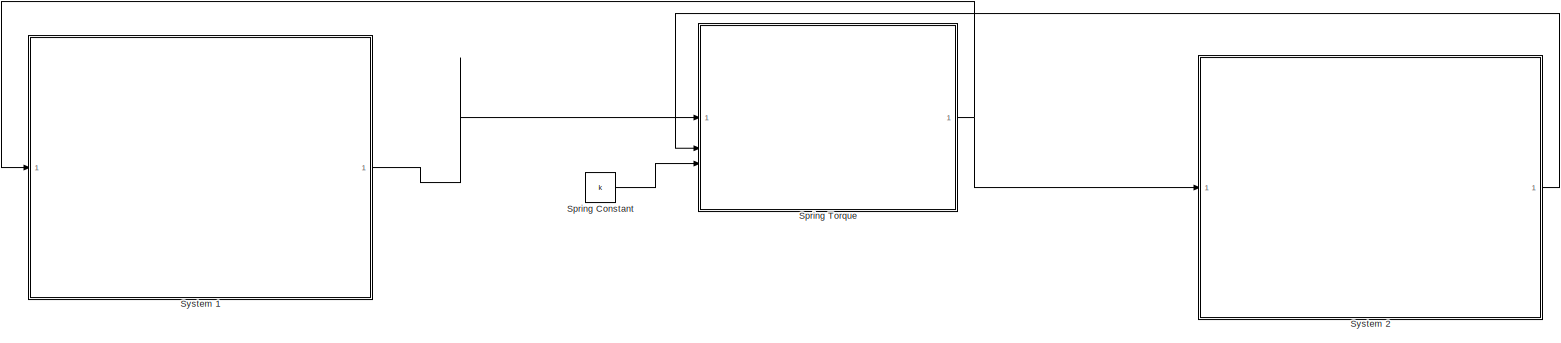
[diagram: root canvas - part 1/1, most of the canvas]
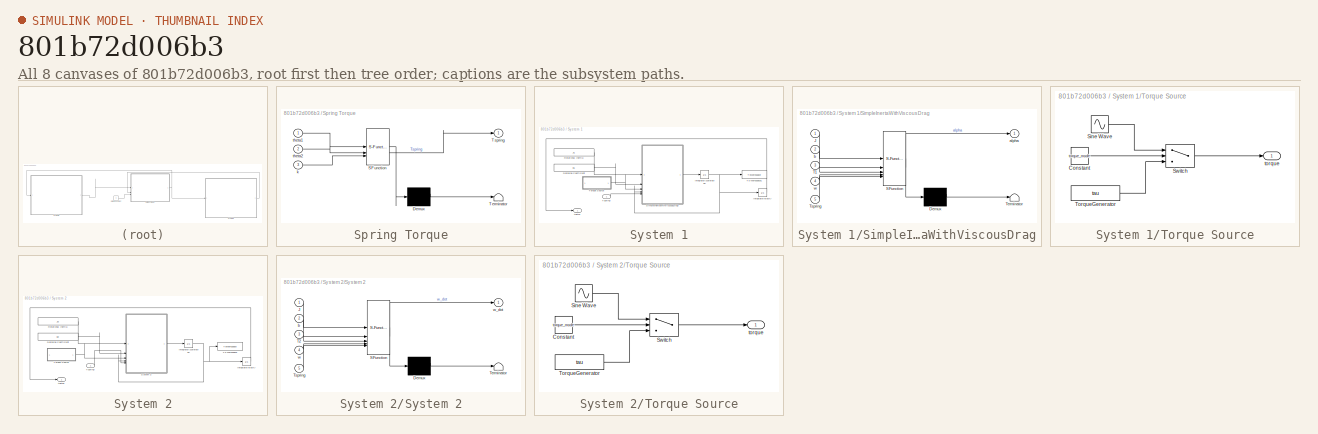
[diagram: thumbnail index - all 8 canvases of the model, root first then tree order]
MODEL slx_801b72d006b3
KIND model
CONFIG AbsTol = auto
CONFIG EnableMultiTasking = off
CONFIG FixedStep = 0.1
CONFIG MaxStep = auto
CONFIG MinStep = auto
CONFIG RelTol = 1e-3
CONFIG SampleTimeConstraint = Unconstrained
CONFIG SolverName = ode1
CONFIG StartTime = 0.0
CONFIG StopTime = 25
BLOCK [Constant] Spring Constant
  Value = k
BLOCK [SubSystem] Spring Torque
  ErrorFcn = Stateflow.Translate.translate
  PermitHierarchicalResolution = ExplicitOnly
  SFBlockType = MATLAB Function
  TreatAsAtomicUnit = on
BLOCK [Demux] Spring Torque/ Demux 
  Outputs = 1
BLOCK [S-Function] Spring Torque/ SFunction 
  EnableBusSupport = on
  FunctionName = sf_sfun
  PortCounts = [3 2]
  SFcnIsStateOwnerBlock = off
  SFunctionDeploymentMode = off
  Tag = Stateflow S-Function 1
BLOCK [Terminator] Spring Torque/ Terminator 
BLOCK [Outport] Spring Torque/Tspring
  VectorParamsAs1DForOutWhenUnconnected = off
BLOCK [Inport] Spring Torque/k
  Port = 3
BLOCK [Inport] Spring Torque/theta1
BLOCK [Inport] Spring Torque/theta2
  Port = 2
BLOCK [SubSystem] System 1
BLOCK [Constant] System 1/Damping Coefficient
  Value = b1
BLOCK [Integrator] System 1/IntegrateAcceleration
  InitialCondition = omega_init
BLOCK [Integrator] System 1/IntegrateVelocity
  InitialCondition = theta0
BLOCK [Constant] System 1/Rotational Inertia
  Value = J1
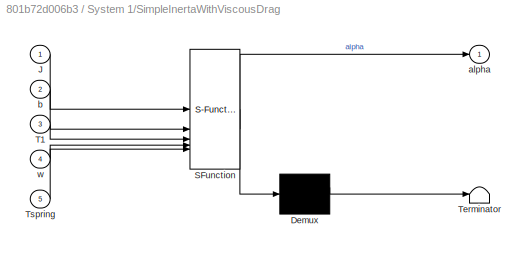
BLOCK [SubSystem] System 1/SimpleInertaWithViscousDrag
  ErrorFcn = Stateflow.Translate.translate
  PermitHierarchicalResolution = ExplicitOnly
  SFBlockType = MATLAB Function
  TreatAsAtomicUnit = on
BLOCK [Demux] System 1/SimpleInertaWithViscousDrag/ Demux 
  Outputs = 1
BLOCK [S-Function] System 1/SimpleInertaWithViscousDrag/ SFunction 
  EnableBusSupport = on
  FunctionName = sf_sfun
  PortCounts = [5 2]
  SFcnIsStateOwnerBlock = off
  SFunctionDeploymentMode = off
  Tag = Stateflow S-Function 2
BLOCK [Terminator] System 1/SimpleInertaWithViscousDrag/ Terminator 
BLOCK [Inport] System 1/SimpleInertaWithViscousDrag/J
BLOCK [Inport] System 1/SimpleInertaWithViscousDrag/T1
  Port = 3
BLOCK [Inport] System 1/SimpleInertaWithViscousDrag/Tspring
  Port = 5
BLOCK [Outport] System 1/SimpleInertaWithViscousDrag/alpha
BLOCK [Inport] System 1/SimpleInertaWithViscousDrag/b
  Port = 2
BLOCK [Inport] System 1/SimpleInertaWithViscousDrag/w
  Port = 4
BLOCK [ToWorkspace] System 1/To Workspace1
  FixptAsFi = on
  MaxDataPoints = inf
  SampleTime = -1
  SaveFormat = Timeseries
  VariableName = omegaoption1S1
BLOCK [SubSystem] System 1/Torque Source
BLOCK [Constant] System 1/Torque Source/Constant
  Value = torque_mode
BLOCK [Sin] System 1/Torque Source/Sine Wave
  Frequency = w_freq
  SampleTime = 0
BLOCK [Switch] System 1/Torque Source/Switch
  Criteria = u2 > Threshold
  InputSameDT = off
  SaturateOnIntegerOverflow = off
BLOCK [Constant] System 1/Torque Source/TorqueGenerator
  Value = tau
BLOCK [Outport] System 1/Torque Source/torque
BLOCK [Inport] System 1/Tspring
BLOCK [Outport] System 1/theta1
BLOCK [SubSystem] System 2
BLOCK [Constant] System 2/Damping Coefficient
  Value = b2
BLOCK [Integrator] System 2/IntegrateAcceleration
  InitialCondition = omega_init
BLOCK [Integrator] System 2/IntegrateVelocity
  InitialCondition = theta0
BLOCK [Constant] System 2/Rotational Inertia
  Value = J2
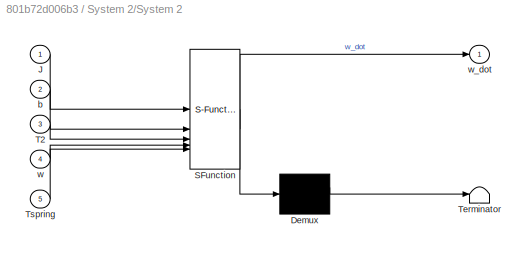
BLOCK [SubSystem] System 2/System 2
  ErrorFcn = Stateflow.Translate.translate
  PermitHierarchicalResolution = ExplicitOnly
  SFBlockType = MATLAB Function
  TreatAsAtomicUnit = on
BLOCK [Demux] System 2/System 2/ Demux 
  Outputs = 1
BLOCK [S-Function] System 2/System 2/ SFunction 
  EnableBusSupport = on
  FunctionName = sf_sfun
  PortCounts = [5 2]
  SFcnIsStateOwnerBlock = off
  SFunctionDeploymentMode = off
  Tag = Stateflow S-Function 4
BLOCK [Terminator] System 2/System 2/ Terminator 
BLOCK [Inport] System 2/System 2/J
BLOCK [Inport] System 2/System 2/T2
  Port = 3
BLOCK [Inport] System 2/System 2/Tspring
  Port = 5
BLOCK [Inport] System 2/System 2/b
  Port = 2
BLOCK [Inport] System 2/System 2/w
  Port = 4
BLOCK [Outport] System 2/System 2/w_dot
BLOCK [ToWorkspace] System 2/To Workspace
  FixptAsFi = on
  MaxDataPoints = inf
  SampleTime = -1
  SaveFormat = Timeseries
  VariableName = omegaoption1S2
BLOCK [SubSystem] System 2/Torque Source
BLOCK [Constant] System 2/Torque Source/Constant
  Value = torque_mode
BLOCK [Sin] System 2/Torque Source/Sine Wave
  Frequency = w_freq
  SampleTime = 0
BLOCK [Switch] System 2/Torque Source/Switch
  Criteria = u2 > Threshold
  InputSameDT = off
  SaturateOnIntegerOverflow = off
BLOCK [Constant] System 2/Torque Source/TorqueGenerator
  Value = tau
BLOCK [Outport] System 2/Torque Source/torque
BLOCK [Inport] System 2/Tspring
BLOCK [Outport] System 2/theta2
LINE Spring Constant:1 -> Spring Torque:3
NET Spring Torque:1 -> System 1:1, System 2:1
LINE System 1/Damping Coefficient:1 -> System 1/SimpleInertaWithViscousDrag:2
NET System 1/IntegrateAcceleration:1 -> System 1/IntegrateVelocity:1, System 1/SimpleInertaWithViscousDrag:4, System 1/To Workspace1:1
LINE System 1/IntegrateVelocity:1 -> System 1/theta1:1
LINE System 1/Rotational Inertia:1 -> System 1/SimpleInertaWithViscousDrag:1
LINE System 1/SimpleInertaWithViscousDrag:1 -> System 1/IntegrateAcceleration:1
LINE System 1/Torque Source/Constant:1 -> System 1/Torque Source/Switch:2
LINE System 1/Torque Source/Sine Wave:1 -> System 1/Torque Source/Switch:1
LINE System 1/Torque Source/Switch:1 -> System 1/Torque Source/torque:1
LINE System 1/Torque Source/TorqueGenerator:1 -> System 1/Torque Source/Switch:3
LINE System 1/Torque Source:1 -> System 1/SimpleInertaWithViscousDrag:3
LINE System 1/Tspring:1 -> System 1/SimpleInertaWithViscousDrag:5
LINE System 1:1 -> Spring Torque:1
LINE System 2/Damping Coefficient:1 -> System 2/System 2:2
NET System 2/IntegrateAcceleration:1 -> System 2/IntegrateVelocity:1, System 2/System 2:4, System 2/To Workspace:1
LINE System 2/IntegrateVelocity:1 -> System 2/theta2:1
LINE System 2/Rotational Inertia:1 -> System 2/System 2:1
LINE System 2/System 2:1 -> System 2/IntegrateAcceleration:1
LINE System 2/Torque Source/Constant:1 -> System 2/Torque Source/Switch:2
LINE System 2/Torque Source/Sine Wave:1 -> System 2/Torque Source/Switch:1
LINE System 2/Torque Source/Switch:1 -> System 2/Torque Source/torque:1
LINE System 2/Torque Source/TorqueGenerator:1 -> System 2/Torque Source/Switch:3
LINE System 2/Torque Source:1 -> System 2/System 2:3
LINE System 2/Tspring:1 -> System 2/System 2:5
LINE System 2:1 -> Spring Torque:2
note: NET lines group one-source signal fan-out (src -> all destinations, sorted); 1:1 wires keep LINE
CHART Spring Torque states=1 transitions=1
  STATE_LABEL 'eML_blk_kernel()'
  STATE_LABEL 'SCRIPT:\nfunction Tspring = fcn(theta1, theta2, k)\nTspring= k*(theta1-theta2);\n'
CHART System 1/SimpleInertaWithViscousDrag states=1 transitions=1
  STATE_LABEL 'eML_blk_kernel()'
  STATE_LABEL 'SCRIPT:\nfunction alpha = fcn(J, b, T1, w, Tspring)\nalpha = ((T1-Tspring) - w * b)/J;\n'
CHART System 2/System 2 states=1 transitions=1
  STATE_LABEL 'eML_blk_kernel()'
  STATE_LABEL 'SCRIPT:\nfunction w_dot = fcn(J, b, T2, w, Tspring)\nw_dot = ((T2-Tspring) - w * b)/J;\n'
CHART  states=0 transitions=0
CHART  states=0 transitions=0
CHART  states=0 transitions=0
